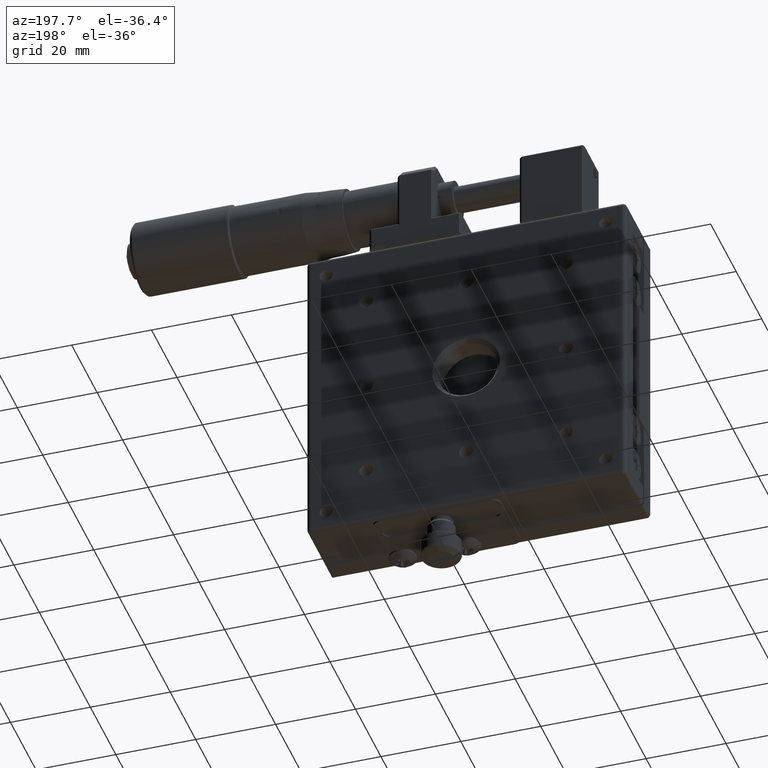
[diagram: clean part render]
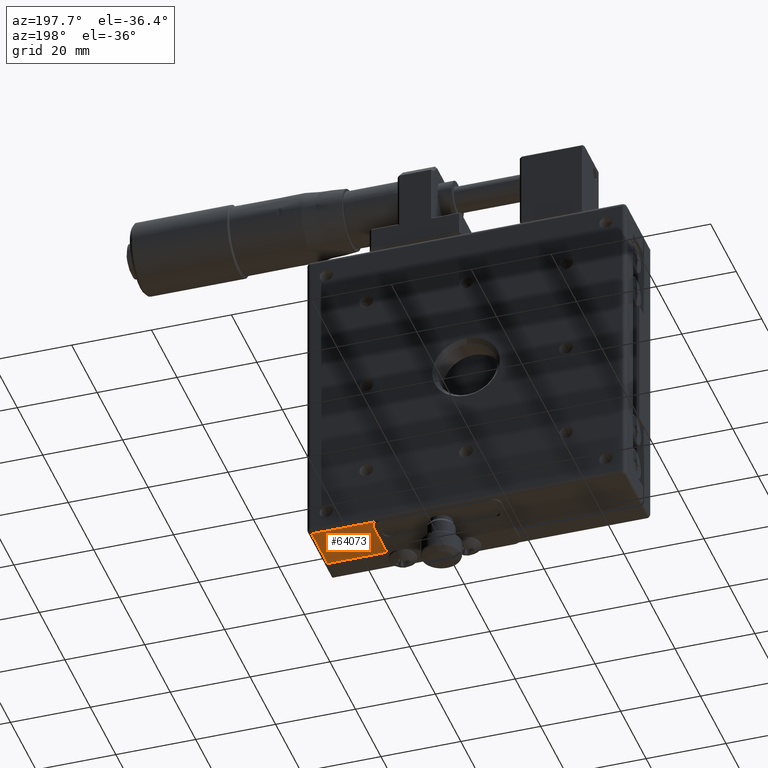
[diagram: same view with one face highlighted and labeled with its STEP entity id]
A machine part, auxiliary view. The second image highlights one B-rep face of the part: STEP entity #64073.
In plain terms, the highlighted planar face has unit normal (0, 0, 1).
Its self-contained STEP definition (entity closure, byte-faithful):
#348 = CARTESIAN_POINT ( 'NONE',  ( 17.30988274706870200, 10.53994974874369994, -40.00000000000000000 ) ) ;
#1379 = CARTESIAN_POINT ( 'NONE',  ( 35.30988274706870556, 13.23994974874371877, -40.00000000000000000 ) ) ;
#4439 = AXIS2_PLACEMENT_3D ( 'NONE', #1379, #48155, #22363 ) ;
#7377 = CARTESIAN_POINT ( 'NONE',  ( 34.30988274706870556, -0.2600502512562724577, -40.00000000000000000 ) ) ;
#8544 = LINE ( 'NONE', #50238, #35087 ) ;
#9168 = DIRECTION ( 'NONE',  ( -4.472500454681550380E-16, 0.000000000000000000, -1.000000000000000000 ) ) ;
#9737 = VERTEX_POINT ( 'NONE', #7377 ) ;
#9776 = LINE ( 'NONE', #26030, #23595 ) ;
#9855 = DIRECTION ( 'NONE',  ( 0.000000000000000000, 1.000000000000000000, 0.000000000000000000 ) ) ;
#10362 = EDGE_CURVE ( 'NONE', #17892, #9737, #29558, .T. ) ;
#13487 = ORIENTED_EDGE ( 'NONE', *, *, #47652, .F. ) ;
#17507 = ORIENTED_EDGE ( 'NONE', *, *, #59622, .F. ) ;
#17614 = VECTOR ( 'NONE', #50242, 1000.000000000000000 ) ;
#17892 = VERTEX_POINT ( 'NONE', #22999 ) ;
#19005 = DIRECTION ( 'NONE',  ( -1.110223024625155924E-16, -1.000000000000000000, 1.566630833875725028E-16 ) ) ;
#21089 = EDGE_LOOP ( 'NONE', ( #17507, #13487, #41659, #55169, #28265 ) ) ;
#22363 = DIRECTION ( 'NONE',  ( 1.000000000000000000, 0.000000000000000000, 0.000000000000000000 ) ) ;
#22492 = CARTESIAN_POINT ( 'NONE',  ( 18.36344812235395096, 12.23994974874372055, -40.00000000000000000 ) ) ;
#22999 = CARTESIAN_POINT ( 'NONE',  ( 34.30988274706870556, 12.23994974874372055, -40.00000000000000000 ) ) ;
#23264 = VERTEX_POINT ( 'NONE', #22492 ) ;
#23595 = VECTOR ( 'NONE', #34880, 1000.000000000000000 ) ;
#23752 = CARTESIAN_POINT ( 'NONE',  ( 19.30988274706869845, 10.53994974874369994, -40.00000000000000000 ) ) ;
#24120 = DIRECTION ( 'NONE',  ( 1.000000000000000000, 0.000000000000000000, 0.000000000000000000 ) ) ;
#26030 = CARTESIAN_POINT ( 'NONE',  ( 35.30988274706870556, -0.2600502512562724577, -40.00000000000000000 ) ) ;
#27150 = FACE_OUTER_BOUND ( 'NONE', #21089, .T. ) ;
#28265 = ORIENTED_EDGE ( 'NONE', *, *, #59978, .T. ) ;
#29558 = LINE ( 'NONE', #44816, #17614 ) ;
#30858 = EDGE_CURVE ( 'NONE', #23264, #17892, #8544, .T. ) ;
#34880 = DIRECTION ( 'NONE',  ( -1.000000000000000000, 0.000000000000000000, 0.000000000000000000 ) ) ;
#35087 = VECTOR ( 'NONE', #24120, 1000.000000000000000 ) ;
#36575 = AXIS2_PLACEMENT_3D ( 'NONE', #348, #9168, #9855 ) ;
#41659 = ORIENTED_EDGE ( 'NONE', *, *, #30858, .T. ) ;
#44816 = CARTESIAN_POINT ( 'NONE',  ( 34.30988274706870556, 13.23994974874371877, -40.00000000000000000 ) ) ;
#45302 = CARTESIAN_POINT ( 'NONE',  ( 19.30988274706869845, -0.2600502512562724577, -40.00000000000000000 ) ) ;
#47577 = VECTOR ( 'NONE', #19005, 1000.000000000000000 ) ;
#47652 = EDGE_CURVE ( 'NONE', #23264, #53478, #66891, .T. ) ;
#47840 = PLANE ( 'NONE',  #4439 ) ;
#48155 = DIRECTION ( 'NONE',  ( 0.000000000000000000, 0.000000000000000000, 1.000000000000000000 ) ) ;
#50238 = CARTESIAN_POINT ( 'NONE',  ( 35.30988274706870556, 12.23994974874372055, -40.00000000000000000 ) ) ;
#50242 = DIRECTION ( 'NONE',  ( 0.000000000000000000, -1.000000000000000000, 0.000000000000000000 ) ) ;
#50337 = VERTEX_POINT ( 'NONE', #45302 ) ;
#53478 = VERTEX_POINT ( 'NONE', #60497 ) ;
#55169 = ORIENTED_EDGE ( 'NONE', *, *, #10362, .T. ) ;
#55615 = LINE ( 'NONE', #23752, #47577 ) ;
#59622 = EDGE_CURVE ( 'NONE', #53478, #50337, #55615, .T. ) ;
#59978 = EDGE_CURVE ( 'NONE', #9737, #50337, #9776, .T. ) ;
#60497 = CARTESIAN_POINT ( 'NONE',  ( 19.30988274706869845, 10.53994974874369994, -40.00000000000000000 ) ) ;
#64073 = ADVANCED_FACE ( 'NONE', ( #27150 ), #47840, .F. ) ;
#66891 = CIRCLE ( 'NONE', #36575, 2.000000000000000000 ) ;